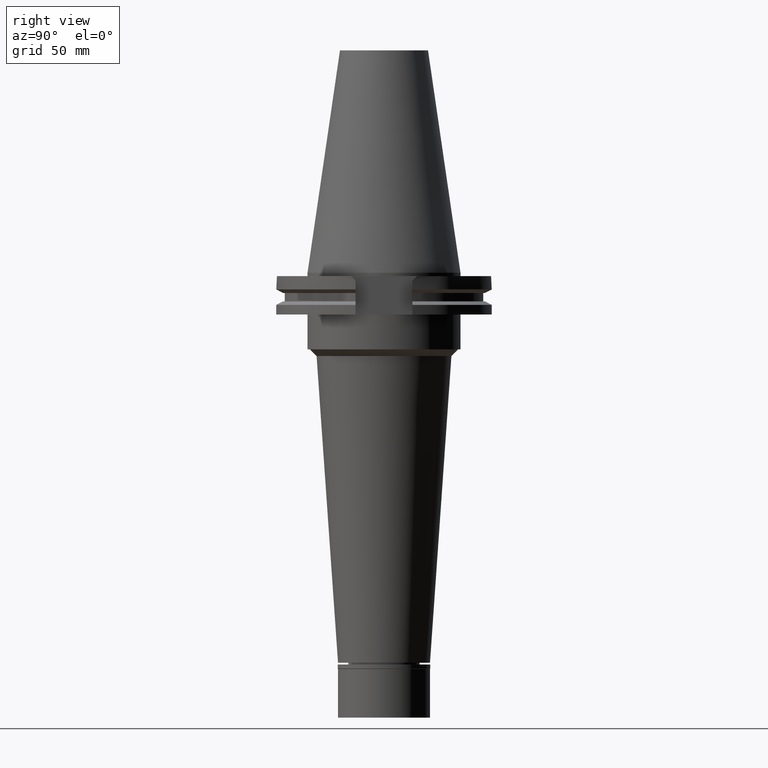
[diagram: clean part render]
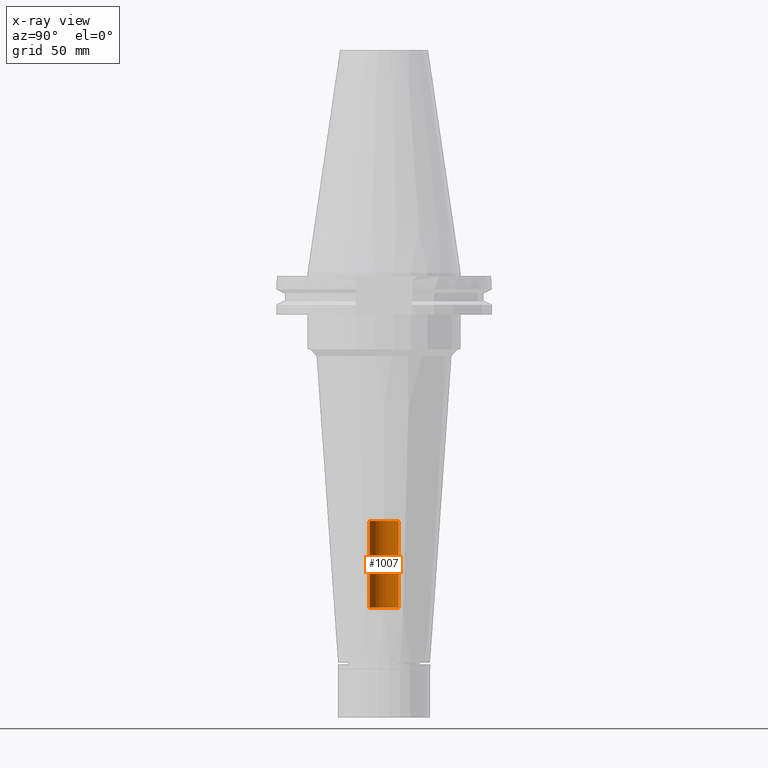
[diagram: x-ray — body ghosted, one internal face saturated and labeled with its STEP entity id]
A machine part, right view, then the same camera in x-ray: the body is ghosted and one INTERNAL B-rep face — a face not visible from any outside direction — is saturated and labeled: STEP entity #1007.
In plain terms, the highlighted cylindrical surface (edge-blend (fillet) strip) has radius 6.65 mm, axis along (0, 0, -1).
Its self-contained STEP definition (entity closure, byte-faithful):
#211 = VERTEX_POINT ( 'NONE', #781 ) ;
#259 = DIRECTION ( 'NONE',  ( 0.0000000000000000000, 0.0000000000000000000, -1.000000000000000000 ) ) ;
#289 = DIRECTION ( 'NONE',  ( 0.0000000000000000000, 0.0000000000000000000, -1.000000000000000000 ) ) ;
#625 = DIRECTION ( 'NONE',  ( 0.0000000000000000000, 0.0000000000000000000, 1.000000000000000000 ) ) ;
#635 = DIRECTION ( 'NONE',  ( 0.0000000000000000000, -1.000000000000000000, 0.0000000000000000000 ) ) ;
#647 = AXIS2_PLACEMENT_3D ( 'NONE', #1214, #2991, #3039 ) ;
#680 = ORIENTED_EDGE ( 'NONE', *, *, #3269, .F. ) ;
#695 = CARTESIAN_POINT ( 'NONE',  ( 0.0000000000000000000, -6.649999999999999467, -113.4000000000000057 ) ) ;
#745 = EDGE_CURVE ( 'NONE', #2153, #211, #1283, .T. ) ;
#781 = CARTESIAN_POINT ( 'NONE',  ( 0.0000000000000000000, 6.649999999999999467, -153.0000000000000000 ) ) ;
#821 = VECTOR ( 'NONE', #625, 1000.000000000000000 ) ;
#915 = CIRCLE ( 'NONE', #647, 6.649999999999999467 ) ;
#1001 = ORIENTED_EDGE ( 'NONE', *, *, #2131, .T. ) ;
#1007 = ADVANCED_FACE ( 'NONE', ( #2643 ), #1907, .F. ) ;
#1080 = CARTESIAN_POINT ( 'NONE',  ( 0.0000000000000000000, 2.650931693773999749E-14, 116.4650000000000034 ) ) ;
#1168 = EDGE_CURVE ( 'NONE', #2672, #2332, #915, .T. ) ;
#1214 = CARTESIAN_POINT ( 'NONE',  ( 0.0000000000000000000, 2.650931693773999749E-14, -113.4000000000000057 ) ) ;
#1283 = CIRCLE ( 'NONE', #1497, 6.649999999999999467 ) ;
#1309 = CARTESIAN_POINT ( 'NONE',  ( 0.0000000000000000000, -6.649999999999999467, -153.0000000000000000 ) ) ;
#1394 = ORIENTED_EDGE ( 'NONE', *, *, #745, .T. ) ;
#1497 = AXIS2_PLACEMENT_3D ( 'NONE', #2872, #289, #2030 ) ;
#1644 = LINE ( 'NONE', #1911, #2351 ) ;
#1907 = CYLINDRICAL_SURFACE ( 'NONE', #2971, 6.649999999999999467 ) ;
#1911 = CARTESIAN_POINT ( 'NONE',  ( 0.0000000000000000000, -6.649999999999999467, -153.0000000000000000 ) ) ;
#1922 = ORIENTED_EDGE ( 'NONE', *, *, #1168, .T. ) ;
#2030 = DIRECTION ( 'NONE',  ( 0.0000000000000000000, -1.000000000000000000, 0.0000000000000000000 ) ) ;
#2131 = EDGE_CURVE ( 'NONE', #211, #2672, #2150, .T. ) ;
#2150 = LINE ( 'NONE', #2942, #821 ) ;
#2153 = VERTEX_POINT ( 'NONE', #1309 ) ;
#2332 = VERTEX_POINT ( 'NONE', #695 ) ;
#2351 = VECTOR ( 'NONE', #2682, 1000.000000000000000 ) ;
#2631 = CARTESIAN_POINT ( 'NONE',  ( 0.0000000000000000000, 6.649999999999999467, -113.4000000000000057 ) ) ;
#2643 = FACE_OUTER_BOUND ( 'NONE', #2913, .T. ) ;
#2672 = VERTEX_POINT ( 'NONE', #2631 ) ;
#2682 = DIRECTION ( 'NONE',  ( 0.0000000000000000000, 0.0000000000000000000, 1.000000000000000000 ) ) ;
#2872 = CARTESIAN_POINT ( 'NONE',  ( 0.0000000000000000000, 2.650931693773999749E-14, -153.0000000000000000 ) ) ;
#2913 = EDGE_LOOP ( 'NONE', ( #1922, #680, #1394, #1001 ) ) ;
#2942 = CARTESIAN_POINT ( 'NONE',  ( 0.0000000000000000000, 6.649999999999999467, -153.0000000000000000 ) ) ;
#2971 = AXIS2_PLACEMENT_3D ( 'NONE', #1080, #259, #635 ) ;
#2991 = DIRECTION ( 'NONE',  ( 0.0000000000000000000, 0.0000000000000000000, 1.000000000000000000 ) ) ;
#3039 = DIRECTION ( 'NONE',  ( 0.0000000000000000000, 1.000000000000000000, 0.0000000000000000000 ) ) ;
#3269 = EDGE_CURVE ( 'NONE', #2153, #2332, #1644, .T. ) ;